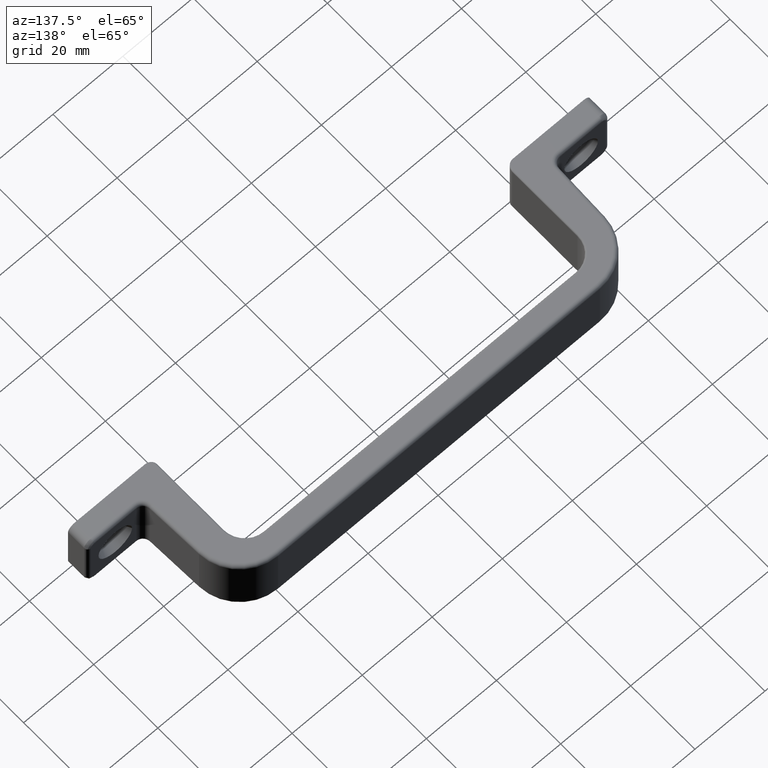
[diagram: clean part render]
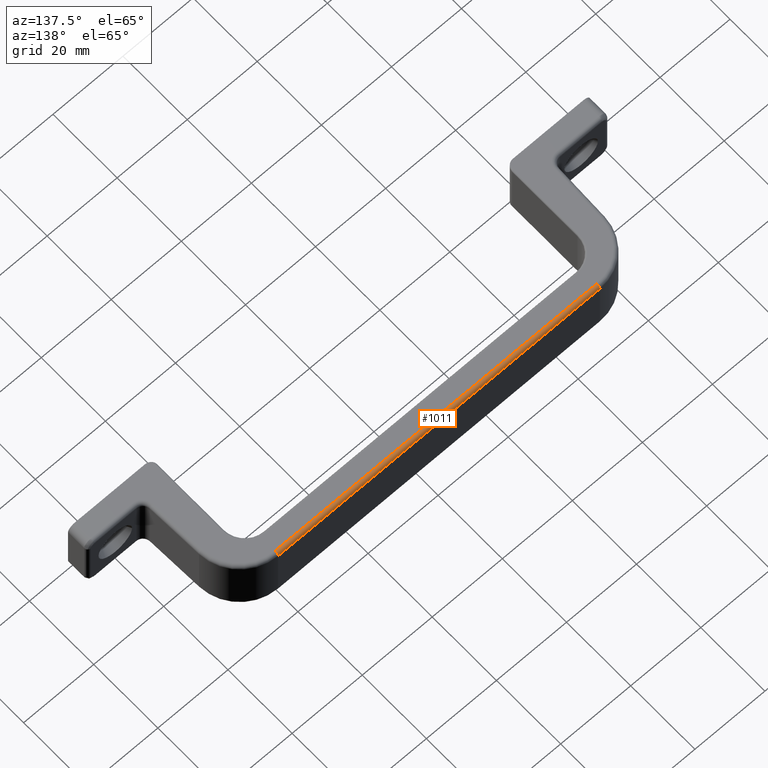
[diagram: same view with one face highlighted and labeled with its STEP entity id]
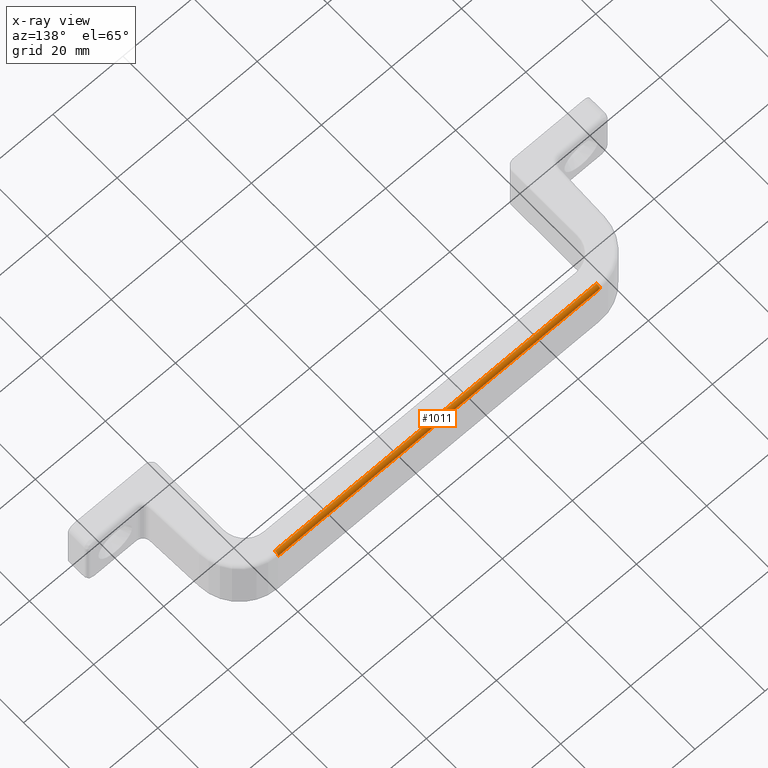
[diagram: x-ray of the same camera — body ghosted, the highlighted face saturated]
A machine part, auxiliary view. The second image highlights one B-rep face of the part: STEP entity #1011.
The next image is the same camera in x-ray: the body ghosted, the highlighted face saturated — about 0% of this face is hidden behind the body in this view.
In plain terms, the highlighted cylindrical surface (edge-blend (fillet) strip) has radius 1 mm, axis along (-1, -0, 0).
Its self-contained STEP definition (entity closure, byte-faithful):
#90=LINE('',#1773,#156);
#91=LINE('',#1776,#157);
#156=VECTOR('',#1400,91.8469538513972);
#157=VECTOR('',#1403,91.8469538513972);
#202=CYLINDRICAL_SURFACE('',#1127,1.);
#261=FACE_OUTER_BOUND('',#331,.T.);
#331=EDGE_LOOP('',(#835,#836,#837,#838));
#372=CIRCLE('',#1062,1.00000000000001);
#409=CIRCLE('',#1128,1.00000000000001);
#454=VERTEX_POINT('',#1591);
#455=VERTEX_POINT('',#1593);
#497=VERTEX_POINT('',#1772);
#498=VERTEX_POINT('',#1774);
#550=EDGE_CURVE('',#454,#455,#372,.T.);
#622=EDGE_CURVE('',#497,#454,#90,.T.);
#623=EDGE_CURVE('',#497,#498,#409,.T.);
#624=EDGE_CURVE('',#455,#498,#91,.T.);
#835=ORIENTED_EDGE('',*,*,#622,.F.);
#836=ORIENTED_EDGE('',*,*,#623,.T.);
#837=ORIENTED_EDGE('',*,*,#624,.F.);
#838=ORIENTED_EDGE('',*,*,#550,.F.);
#1011=ADVANCED_FACE('',(#261),#202,.T.);
#1062=AXIS2_PLACEMENT_3D('',#1594,#1235,#1236);
#1127=AXIS2_PLACEMENT_3D('',#1771,#1398,#1399);
#1128=AXIS2_PLACEMENT_3D('',#1775,#1401,#1402);
#1235=DIRECTION('center_axis',(1.,0.,0.));
#1236=DIRECTION('ref_axis',(0.,1.,0.));
#1398=DIRECTION('center_axis',(-1.,-9.67020007149223E-17,0.));
#1399=DIRECTION('ref_axis',(0.,0.707106781186549,0.707106781186546));
#1400=DIRECTION('',(1.,-9.67020007149223E-17,0.));
#1401=DIRECTION('center_axis',(1.,0.,0.));
#1402=DIRECTION('ref_axis',(0.,1.,0.));
#1403=DIRECTION('',(-1.,9.67020007149223E-17,0.));
#1591=CARTESIAN_POINT('',(120.423476925699,34.3,8.));
#1593=CARTESIAN_POINT('',(120.423476925699,33.3,9.));
#1594=CARTESIAN_POINT('Origin',(120.423476925699,33.3,8.));
#1771=CARTESIAN_POINT('Origin',(54.1482690038579,33.3,8.));
#1772=CARTESIAN_POINT('',(28.5765230743013,34.3,8.));
#1773=CARTESIAN_POINT('',(94.851730996142,34.3,8.));
#1774=CARTESIAN_POINT('',(28.5765230743013,33.3,9.));
#1775=CARTESIAN_POINT('Origin',(28.5765230743013,33.3,8.));
#1776=CARTESIAN_POINT('',(94.851730996142,33.3,9.));